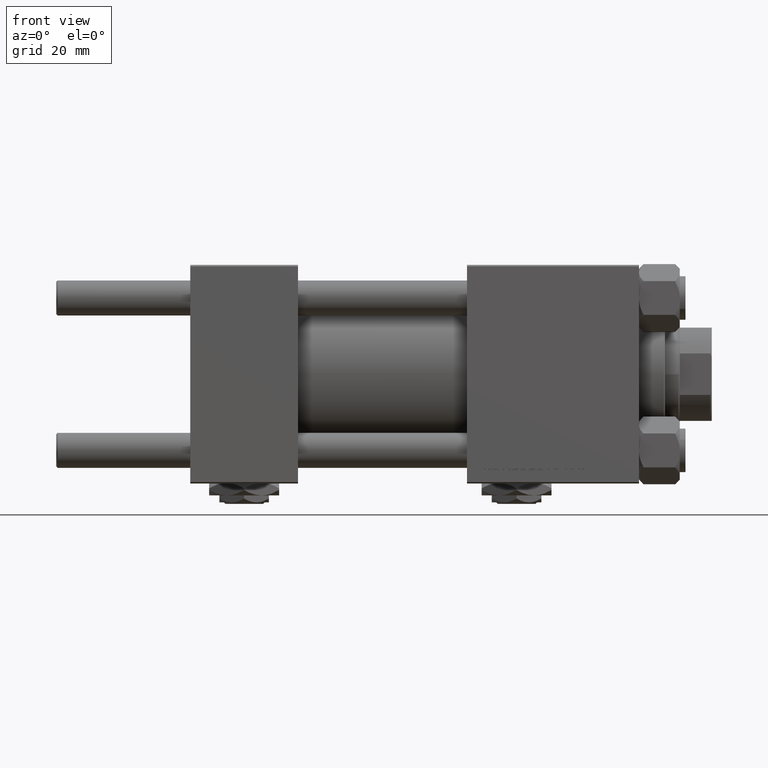
[diagram: clean part render]
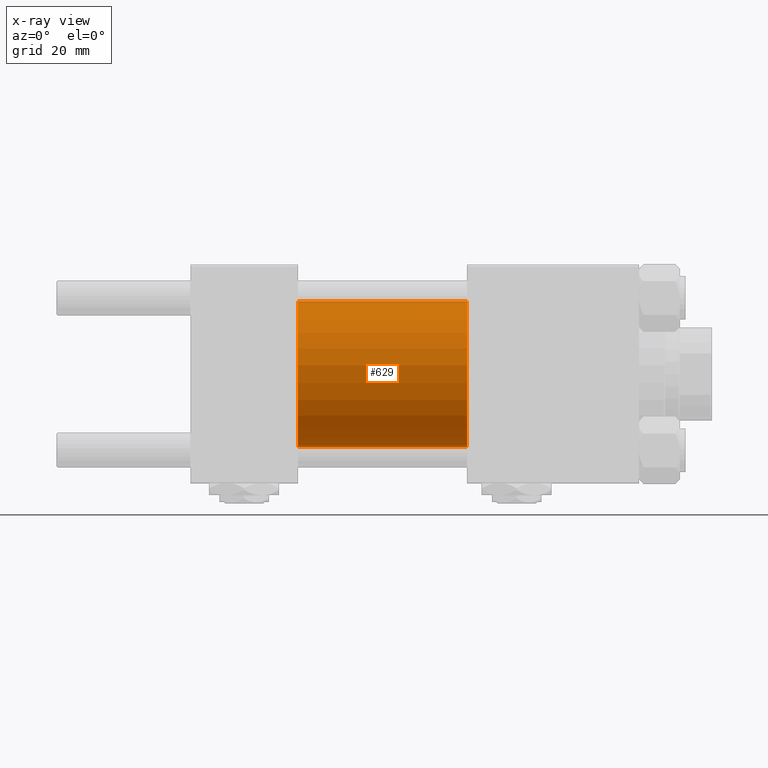
[diagram: x-ray — body ghosted, one internal face saturated and labeled with its STEP entity id]
A machine part, front view, then the same camera in x-ray: the body is ghosted and one INTERNAL B-rep face — a face not visible from any outside direction — is saturated and labeled: STEP entity #629.
In plain terms, the highlighted cylindrical surface (partial cylindrical patch) has radius 25 mm, axis along (-1, -0, -0).
Its self-contained STEP definition (entity closure, byte-faithful):
#629 = ADVANCED_FACE ( 'NONE', ( #4587 ), #16631, .F. ) ;
#1721 = AXIS2_PLACEMENT_3D ( 'NONE', #25793, #9560, #41499 ) ;
#2796 = AXIS2_PLACEMENT_3D ( 'NONE', #38729, #2852, #18829 ) ;
#2852 = DIRECTION ( 'NONE',  ( 1.000000000000000000, 0.000000000000000000, 0.000000000000000000 ) ) ;
#3210 = VERTEX_POINT ( 'NONE', #43026 ) ;
#3651 = EDGE_CURVE ( 'NONE', #26235, #25003, #25915, .T. ) ;
#4497 = ORIENTED_EDGE ( 'NONE', *, *, #33796, .F. ) ;
#4587 = FACE_OUTER_BOUND ( 'NONE', #14416, .T. ) ;
#5830 = DIRECTION ( 'NONE',  ( 0.000000000000000000, 0.000000000000000000, -1.000000000000000000 ) ) ;
#9560 = DIRECTION ( 'NONE',  ( -1.000000000000000000, -0.000000000000000000, -0.000000000000000000 ) ) ;
#11923 = ORIENTED_EDGE ( 'NONE', *, *, #3651, .F. ) ;
#12043 = CARTESIAN_POINT ( 'NONE',  ( 95.00000000000000000, 3.061616997868382254E-15, -25.00000000000000000 ) ) ;
#14416 = EDGE_LOOP ( 'NONE', ( #38071, #15445, #4497, #11923 ) ) ;
#14902 = CARTESIAN_POINT ( 'NONE',  ( 37.00000000000000000, 0.000000000000000000, 25.00000000000000000 ) ) ;
#15445 = ORIENTED_EDGE ( 'NONE', *, *, #43481, .T. ) ;
#15892 = VECTOR ( 'NONE', #29977, 1000.000000000000000 ) ;
#16631 = CYLINDRICAL_SURFACE ( 'NONE', #1721, 25.00000000000000000 ) ;
#17315 = EDGE_CURVE ( 'NONE', #26235, #24062, #20359, .T. ) ;
#17795 = DIRECTION ( 'NONE',  ( -1.000000000000000000, -0.000000000000000000, -0.000000000000000000 ) ) ;
#18312 = CARTESIAN_POINT ( 'NONE',  ( 95.00000000000000000, 0.000000000000000000, 25.00000000000000000 ) ) ;
#18829 = DIRECTION ( 'NONE',  ( 0.000000000000000000, 0.000000000000000000, -1.000000000000000000 ) ) ;
#20359 = CIRCLE ( 'NONE', #2796, 25.00000000000000000 ) ;
#23853 = VECTOR ( 'NONE', #17795, 1000.000000000000000 ) ;
#24062 = VERTEX_POINT ( 'NONE', #12043 ) ;
#25003 = VERTEX_POINT ( 'NONE', #14902 ) ;
#25742 = CARTESIAN_POINT ( 'NONE',  ( 37.00000000000000000, 0.000000000000000000, 0.000000000000000000 ) ) ;
#25793 = CARTESIAN_POINT ( 'NONE',  ( 95.00000000000000000, 0.000000000000000000, 0.000000000000000000 ) ) ;
#25915 = LINE ( 'NONE', #18312, #23853 ) ;
#26235 = VERTEX_POINT ( 'NONE', #37589 ) ;
#29923 = CIRCLE ( 'NONE', #36566, 25.00000000000000000 ) ;
#29977 = DIRECTION ( 'NONE',  ( -1.000000000000000000, -0.000000000000000000, -0.000000000000000000 ) ) ;
#33658 = CARTESIAN_POINT ( 'NONE',  ( 95.00000000000000000, 3.061616997868382254E-15, -25.00000000000000000 ) ) ;
#33796 = EDGE_CURVE ( 'NONE', #25003, #3210, #29923, .T. ) ;
#33914 = LINE ( 'NONE', #33658, #15892 ) ;
#36566 = AXIS2_PLACEMENT_3D ( 'NONE', #25742, #41711, #5830 ) ;
#37589 = CARTESIAN_POINT ( 'NONE',  ( 95.00000000000000000, 0.000000000000000000, 25.00000000000000000 ) ) ;
#38071 = ORIENTED_EDGE ( 'NONE', *, *, #17315, .T. ) ;
#38729 = CARTESIAN_POINT ( 'NONE',  ( 95.00000000000000000, 0.000000000000000000, 0.000000000000000000 ) ) ;
#41499 = DIRECTION ( 'NONE',  ( 0.000000000000000000, 0.000000000000000000, 1.000000000000000000 ) ) ;
#41711 = DIRECTION ( 'NONE',  ( 1.000000000000000000, 0.000000000000000000, 0.000000000000000000 ) ) ;
#43026 = CARTESIAN_POINT ( 'NONE',  ( 37.00000000000000000, 3.061616997868382254E-15, -25.00000000000000000 ) ) ;
#43481 = EDGE_CURVE ( 'NONE', #24062, #3210, #33914, .T. ) ;